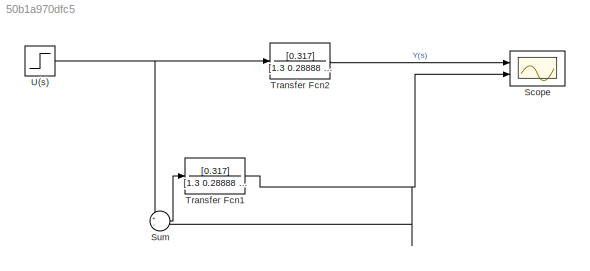
MODEL slx_50b1a970dfc5
KIND model
CONFIG AbsTol = auto
CONFIG EnableMultiTasking = on
CONFIG FixedStep = auto
CONFIG MaxStep = auto
CONFIG MinStep = auto
CONFIG RelTol = 1e-3
CONFIG SampleTimeConstraint = Unconstrained
CONFIG Solver = ode45
CONFIG SolverName = ode45
CONFIG StartTime = 0.0
CONFIG StopTime = 15
BLOCK [Scope] Scope
  Floating = off
  LimitDataPoints = off
  NumInputPorts = 2
  Ports = [2]
  ShowLegends = off
  YMax = 5~5
  YMin = -5~-5
BLOCK [Sum] Sum
  IconShape = round
  InputSameDT = off
  Inputs = +-
  OutDataTypeStr = Inherit: Inherit via internal rule
  Ports = [2, 1]
  SaturateOnIntegerOverflow = off
BLOCK [TransferFcn] Transfer Fcn1
  Denominator = [1.3 0.28888 13.2439396 0.01745377751]
  Numerator = [0.317]
BLOCK [TransferFcn] Transfer Fcn2
  Denominator = [1.3 0.28888 13.2439396 0.01745377751]
  Numerator = [0.317]
BLOCK [Step] U(s)
  SampleTime = 1
  Time = 0
LINE Sum:1 -> Transfer Fcn1:1
NET Transfer Fcn1:1 -> Scope:2, Sum:2
LINE Transfer Fcn2:1 -> Scope:1
NET U(s):1 -> Sum:1, Transfer Fcn2:1
note: NET lines group one-source signal fan-out (src -> all destinations, sorted); 1:1 wires keep LINE
